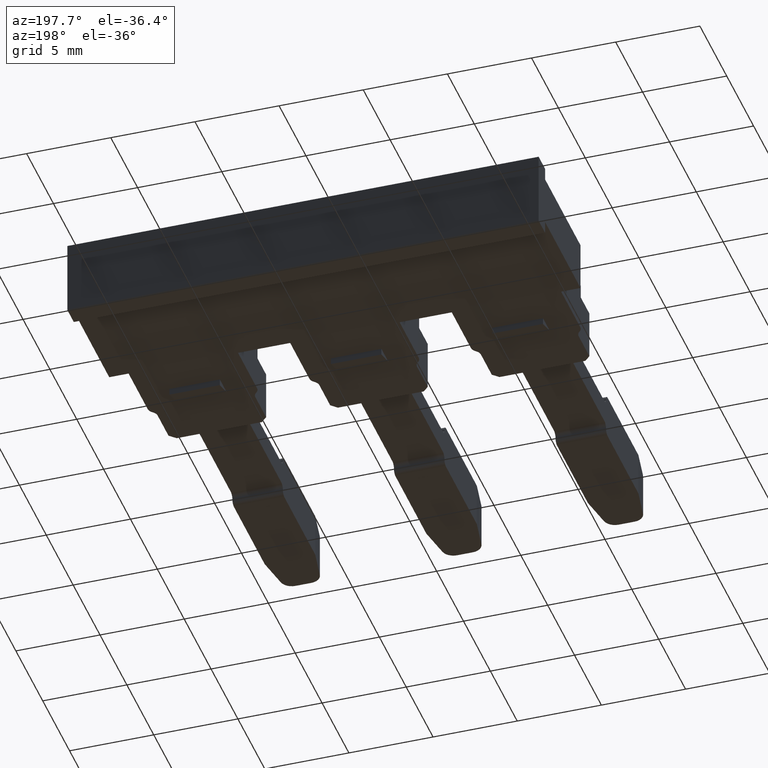
[diagram: clean part render]
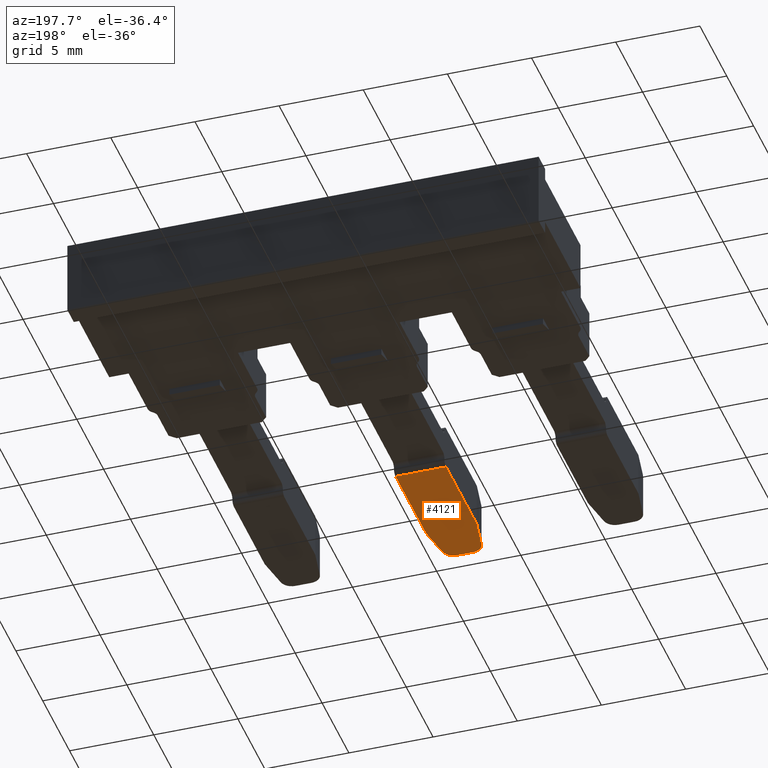
[diagram: same view with one face highlighted and labeled with its STEP entity id]
A machine part, auxiliary view. The second image highlights one B-rep face of the part: STEP entity #4121.
In plain terms, the highlighted planar face has unit normal (0, -0, -1).
Its self-contained STEP definition (entity closure, byte-faithful):
#335 = CARTESIAN_POINT ( 'NONE',  ( 1145.094445258720700, 652.3527367076611700, 0.1522013187304284700 ) ) ;
#338 = CARTESIAN_POINT ( 'NONE',  ( 1142.094434011691000, 652.3527719075040100, 0.1522013187405798500 ) ) ;
#373 = CARTESIAN_POINT ( 'NONE',  ( 1144.755614559366900, 644.7067378249282700, 0.1522013187407039700 ) ) ;
#406 = CARTESIAN_POINT ( 'NONE',  ( 1142.094434011691000, 646.6283161340937800, 0.1522013187405634200 ) ) ;
#435 = CARTESIAN_POINT ( 'NONE',  ( 1142.433259543838600, 644.7067378249283800, 0.1522013187405768000 ) ) ;
#436 = CARTESIAN_POINT ( 'NONE',  ( 1145.094449358968400, 646.6283161340936700, 0.1522013187403572800 ) ) ;
#441 = CARTESIAN_POINT ( 'NONE',  ( 1143.122625005873700, 644.1282913512167200, 0.1522013187406196800 ) ) ;
#442 = CARTESIAN_POINT ( 'NONE',  ( 1144.066249097331600, 644.1282913512167200, 0.1522013187406496500 ) ) ;
#1200 = CARTESIAN_POINT ( 'NONE',  ( 1142.433259543838600, 644.7067378249283800, 0.1522013187405768000 ) ) ;
#1202 = DIRECTION ( 'NONE',  ( -7.162729585980651700E-007, 0.9999999999997434300, -1.798840361398137500E-012 ) ) ;
#1203 = CARTESIAN_POINT ( 'NONE',  ( 1142.797460258348300, 644.1873518378538400, 0.1522013187405904800 ) ) ;
#1206 = CARTESIAN_POINT ( 'NONE',  ( 1143.122625005873700, 644.1282913512167200, 0.1522013187406196800 ) ) ;
#1216 = CARTESIAN_POINT ( 'NONE',  ( 1145.094449358964800, 646.6283210584171000, 0.1522013187407257900 ) ) ;
#1230 = CARTESIAN_POINT ( 'NONE',  ( 1142.959727575498600, 644.1282913512168300, 0.1522013187405992200 ) ) ;
#1233 = CARTESIAN_POINT ( 'NONE',  ( 1142.461546339675100, 644.5463151644212300, 0.1522013187405724700 ) ) ;
#1235 = LINE ( 'NONE', #1216, #3592 ) ;
#1242 = CARTESIAN_POINT ( 'NONE',  ( 1142.547886945760400, 644.3967687734997300, 0.1522013187405771600 ) ) ;
#1250 = CARTESIAN_POINT ( 'NONE',  ( 1144.066249097331600, 644.1282913512167200, 0.1522013187406496500 ) ) ;
#1263 = CARTESIAN_POINT ( 'NONE',  ( 1144.640987157445100, 644.3967687734991600, 0.1522013187406734400 ) ) ;
#1268 = CARTESIAN_POINT ( 'NONE',  ( 1144.755614559366900, 644.7067378249282700, 0.1522013187407039700 ) ) ;
#1269 = CARTESIAN_POINT ( 'NONE',  ( 1144.727327763530900, 644.5463151644213400, 0.1522013187406780800 ) ) ;
#1273 = CARTESIAN_POINT ( 'NONE',  ( 1144.229146527706700, 644.1282913512167200, 0.1522013187406513800 ) ) ;
#1288 = CARTESIAN_POINT ( 'NONE',  ( 1144.391413844857000, 644.1873518378542900, 0.1522013187406601200 ) ) ;
#1362 = CARTESIAN_POINT ( 'NONE',  ( 1135.207395039572200, 644.1282913512167200, 0.1522013187406430500 ) ) ;
#1363 = DIRECTION ( 'NONE',  ( -1.000000000000000000, 1.720418656508634100E-014, 0.0000000000000000000 ) ) ;
#1384 = LINE ( 'NONE', #1362, #3141 ) ;
#1388 = LINE ( 'NONE', #1389, #3152 ) ;
#1389 = CARTESIAN_POINT ( 'NONE',  ( 1142.433259543838600, 644.7067378249283800, 0.1522013187405819300 ) ) ;
#1391 = LINE ( 'NONE', #1397, #3110 ) ;
#1392 = DIRECTION ( 'NONE',  ( -0.1736478946976743900, -0.9848078029072806500, -9.321079137593844600E-015 ) ) ;
#1397 = CARTESIAN_POINT ( 'NONE',  ( 1145.094440091514600, 646.6283161340935500, 0.1522013187407247100 ) ) ;
#1412 = DIRECTION ( 'NONE',  ( -0.1736478946976646700, 0.9848078029072824300, -9.321079137593324000E-015 ) ) ;
#1432 = DIRECTION ( 'NONE',  ( 0.0000000000000000000, 1.000000000000000000, 0.0000000000000000000 ) ) ;
#1461 = CARTESIAN_POINT ( 'NONE',  ( 1142.094434011691000, 652.6527719075244200, 0.1522013187405632500 ) ) ;
#1474 = LINE ( 'NONE', #1461, #3157 ) ;
#1639 = DIRECTION ( 'NONE',  ( 0.9999999999311652800, -1.173325889926041300E-005, 5.364982877096552300E-014 ) ) ;
#1643 = LINE ( 'NONE', #1648, #3207 ) ;
#1648 = CARTESIAN_POINT ( 'NONE',  ( 1142.094434011691000, 652.3527719075040100, 0.1522013187405637500 ) ) ;
#1818 = DIRECTION ( 'NONE',  ( -1.000000000000000000, 0.0000000000000000000, -5.364441115334514400E-014 ) ) ;
#1828 = FACE_OUTER_BOUND ( 'NONE', #2578, .T. ) ;
#1833 = PLANE ( 'NONE',  #3241 ) ;
#1867 = CARTESIAN_POINT ( 'NONE',  ( 1146.094434382171600, 641.5303140484550100, 0.1522013187407783600 ) ) ;
#1869 = DIRECTION ( 'NONE',  ( 5.364441115334514400E-014, -1.058364141383339600E-023, -1.000000000000000000 ) ) ;
#2499 = VERTEX_POINT ( 'NONE', #335 ) ;
#2503 = VERTEX_POINT ( 'NONE', #373 ) ;
#2511 = VERTEX_POINT ( 'NONE', #338 ) ;
#2516 = VERTEX_POINT ( 'NONE', #435 ) ;
#2539 = VERTEX_POINT ( 'NONE', #406 ) ;
#2542 = VERTEX_POINT ( 'NONE', #441 ) ;
#2543 = VERTEX_POINT ( 'NONE', #436 ) ;
#2550 = VERTEX_POINT ( 'NONE', #442 ) ;
#2578 = EDGE_LOOP ( 'NONE', ( #2953, #2900, #2983, #2973, #3001, #2989, #2947, #2985 ) ) ;
#2900 = ORIENTED_EDGE ( 'NONE', *, *, #3972, .T. ) ;
#2947 = ORIENTED_EDGE ( 'NONE', *, *, #3976, .T. ) ;
#2953 = ORIENTED_EDGE ( 'NONE', *, *, #3907, .F. ) ;
#2973 = ORIENTED_EDGE ( 'NONE', *, *, #3959, .T. ) ;
#2983 = ORIENTED_EDGE ( 'NONE', *, *, #3927, .F. ) ;
#2985 = ORIENTED_EDGE ( 'NONE', *, *, #4040, .T. ) ;
#2989 = ORIENTED_EDGE ( 'NONE', *, *, #3969, .T. ) ;
#3001 = ORIENTED_EDGE ( 'NONE', *, *, #3910, .F. ) ;
#3110 = VECTOR ( 'NONE', #1392, 1000.000000000000100 ) ;
#3141 = VECTOR ( 'NONE', #1363, 1000.000000000000000 ) ;
#3152 = VECTOR ( 'NONE', #1412, 1000.000000000000100 ) ;
#3157 = VECTOR ( 'NONE', #1432, 1000.000000000000000 ) ;
#3207 = VECTOR ( 'NONE', #1639, 1000.000000000000100 ) ;
#3241 = AXIS2_PLACEMENT_3D ( 'NONE', #1867, #1869, #1818 ) ;
#3592 = VECTOR ( 'NONE', #1202, 1000.000000000000100 ) ;
#3907 = EDGE_CURVE ( 'NONE', #2543, #2499, #1235, .T. ) ;
#3910 = EDGE_CURVE ( 'NONE', #2516, #2542, #4096, .T. ) ;
#3927 = EDGE_CURVE ( 'NONE', #2550, #2503, #4097, .T. ) ;
#3959 = EDGE_CURVE ( 'NONE', #2550, #2542, #1384, .T. ) ;
#3969 = EDGE_CURVE ( 'NONE', #2516, #2539, #1388, .T. ) ;
#3972 = EDGE_CURVE ( 'NONE', #2543, #2503, #1391, .T. ) ;
#3976 = EDGE_CURVE ( 'NONE', #2539, #2511, #1474, .T. ) ;
#4040 = EDGE_CURVE ( 'NONE', #2511, #2499, #1643, .T. ) ;
#4096 = B_SPLINE_CURVE_WITH_KNOTS ( 'NONE', 3,
 ( #1200, #1233, #1242, #1203, #1230, #1206 ),
 .UNSPECIFIED., .F., .F.,
 ( 4, 2, 4 ),
 ( 0.0000000000000000000, 0.5000000000000000000, 1.000000000000000000 ),
 .UNSPECIFIED. ) ;
#4097 = B_SPLINE_CURVE_WITH_KNOTS ( 'NONE', 3,
 ( #1250, #1273, #1288, #1263, #1269, #1268 ),
 .UNSPECIFIED., .F., .F.,
 ( 4, 2, 4 ),
 ( 0.0000000000000000000, 0.5000000000000000000, 1.000000000000000000 ),
 .UNSPECIFIED. ) ;
#4121 = ADVANCED_FACE ( 'NONE', ( #1828 ), #1833, .T. ) ;